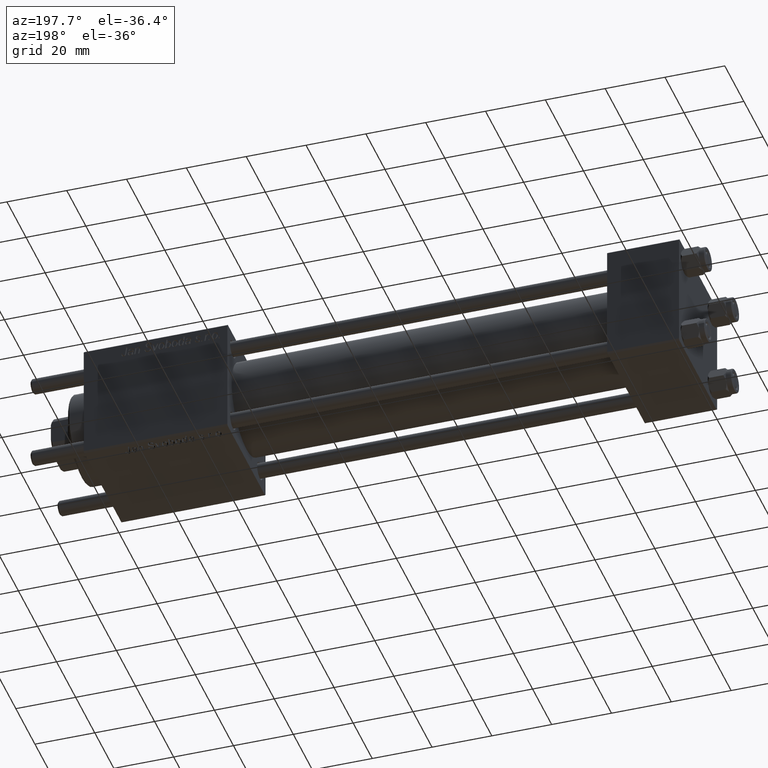
[diagram: clean part render]
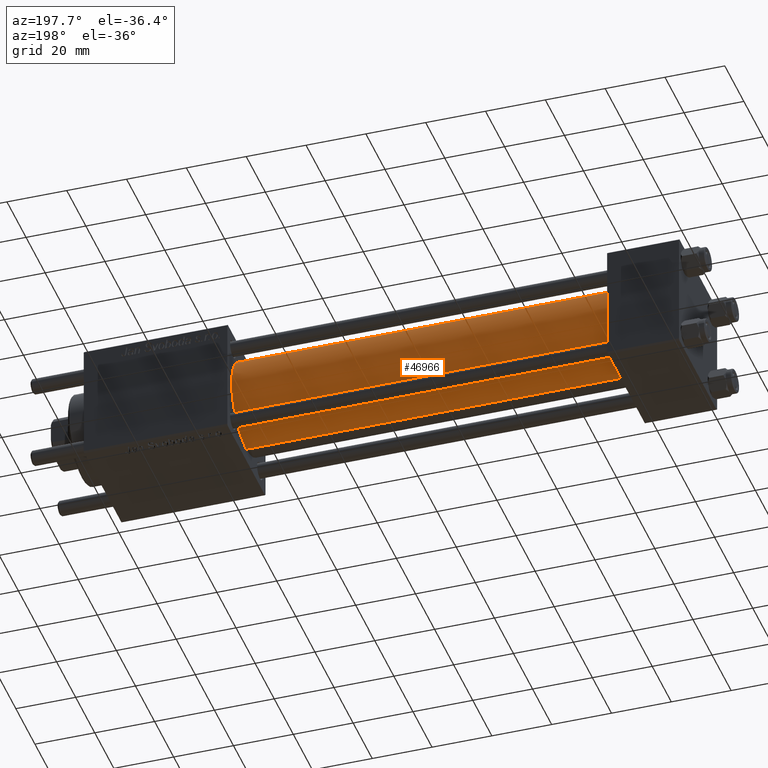
[diagram: same view with one face highlighted and labeled with its STEP entity id]
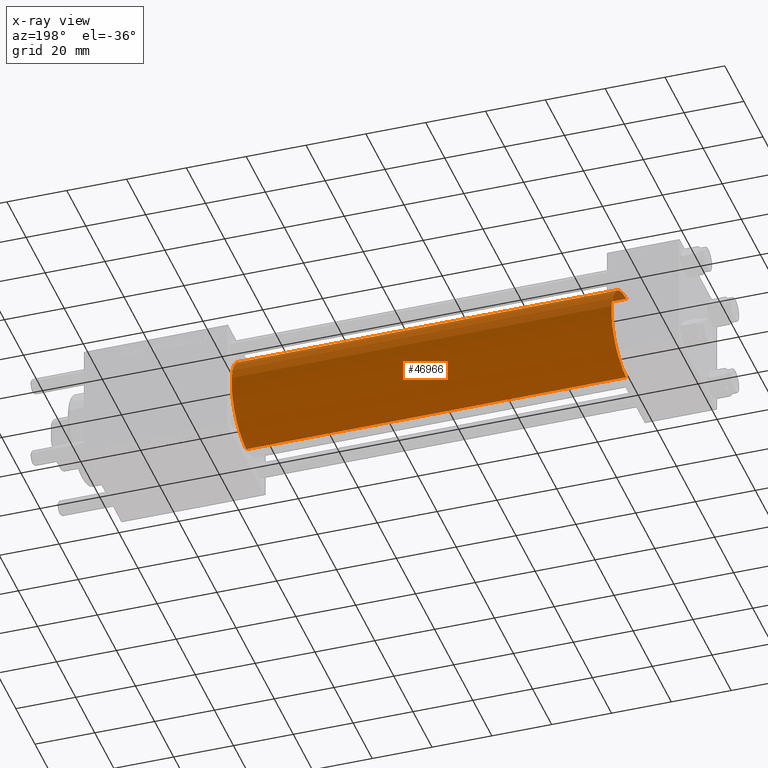
[diagram: x-ray of the same camera — body ghosted, the highlighted face saturated]
A machine part, auxiliary view. The second image highlights one B-rep face of the part: STEP entity #46966.
The next image is the same camera in x-ray: the body ghosted, the highlighted face saturated — about 0% of this face is hidden behind the body in this view.
In plain terms, the highlighted cylindrical surface (partial cylindrical patch) has radius 15.5 mm, axis along (-1, -0, -0).
Its self-contained STEP definition (entity closure, byte-faithful):
#137 = DIRECTION ( 'NONE',  ( -1.000000000000000000, -0.000000000000000000, -0.000000000000000000 ) ) ;
#625 = ORIENTED_EDGE ( 'NONE', *, *, #47037, .F. ) ;
#4417 = CARTESIAN_POINT ( 'NONE',  ( 151.0000000000000000, -2.602085213965210642E-15, 15.50000000000000000 ) ) ;
#5287 = VERTEX_POINT ( 'NONE', #39488 ) ;
#5982 = VECTOR ( 'NONE', #137, 1000.000000000000000 ) ;
#10644 = DIRECTION ( 'NONE',  ( 1.000000000000000000, 0.000000000000000000, 0.000000000000000000 ) ) ;
#11366 = VERTEX_POINT ( 'NONE', #13280 ) ;
#13032 = DIRECTION ( 'NONE',  ( -1.000000000000000000, -0.000000000000000000, -0.000000000000000000 ) ) ;
#13235 = CIRCLE ( 'NONE', #37904, 15.50000000000000000 ) ;
#13280 = CARTESIAN_POINT ( 'NONE',  ( 23.99999999999999289, -7.038826752868131828E-16, -15.50000000000000000 ) ) ;
#14995 = CARTESIAN_POINT ( 'NONE',  ( 151.0000000000000000, -2.602085213965210642E-15, 0.000000000000000000 ) ) ;
#16743 = CYLINDRICAL_SURFACE ( 'NONE', #34257, 15.50000000000000000 ) ;
#18222 = LINE ( 'NONE', #26767, #5982 ) ;
#19426 = ORIENTED_EDGE ( 'NONE', *, *, #36916, .F. ) ;
#19808 = ORIENTED_EDGE ( 'NONE', *, *, #42646, .T. ) ;
#20162 = EDGE_LOOP ( 'NONE', ( #625, #21112, #19808, #19426 ) ) ;
#20458 = DIRECTION ( 'NONE',  ( 0.000000000000000000, 0.000000000000000000, 1.000000000000000000 ) ) ;
#21100 = CARTESIAN_POINT ( 'NONE',  ( 151.0000000000000000, -2.602085213965210642E-15, 15.50000000000000000 ) ) ;
#21112 = ORIENTED_EDGE ( 'NONE', *, *, #49311, .T. ) ;
#26767 = CARTESIAN_POINT ( 'NONE',  ( 151.0000000000000000, -7.038826752868131828E-16, -15.50000000000000000 ) ) ;
#26897 = VERTEX_POINT ( 'NONE', #30308 ) ;
#28751 = DIRECTION ( 'NONE',  ( -1.000000000000000000, -0.000000000000000000, -0.000000000000000000 ) ) ;
#30308 = CARTESIAN_POINT ( 'NONE',  ( 23.99999999999999289, -2.602085213965210642E-15, 15.50000000000000000 ) ) ;
#31577 = DIRECTION ( 'NONE',  ( 1.000000000000000000, 0.000000000000000000, 0.000000000000000000 ) ) ;
#32176 = VERTEX_POINT ( 'NONE', #21100 ) ;
#33625 = CARTESIAN_POINT ( 'NONE',  ( 151.0000000000000000, -2.602085213965210642E-15, 0.000000000000000000 ) ) ;
#34257 = AXIS2_PLACEMENT_3D ( 'NONE', #33625, #28751, #20458 ) ;
#35932 = AXIS2_PLACEMENT_3D ( 'NONE', #49867, #10644, #38367 ) ;
#36916 = EDGE_CURVE ( 'NONE', #32176, #26897, #52255, .T. ) ;
#37904 = AXIS2_PLACEMENT_3D ( 'NONE', #14995, #31577, #49627 ) ;
#38367 = DIRECTION ( 'NONE',  ( 0.000000000000000000, 0.000000000000000000, 1.000000000000000000 ) ) ;
#39488 = CARTESIAN_POINT ( 'NONE',  ( 151.0000000000000000, -7.038826752868131828E-16, -15.50000000000000000 ) ) ;
#42646 = EDGE_CURVE ( 'NONE', #11366, #26897, #56082, .T. ) ;
#46966 = ADVANCED_FACE ( 'NONE', ( #51677 ), #16743, .T. ) ;
#47037 = EDGE_CURVE ( 'NONE', #5287, #32176, #13235, .T. ) ;
#48758 = VECTOR ( 'NONE', #13032, 1000.000000000000000 ) ;
#49311 = EDGE_CURVE ( 'NONE', #5287, #11366, #18222, .T. ) ;
#49627 = DIRECTION ( 'NONE',  ( 0.000000000000000000, 0.000000000000000000, -1.000000000000000000 ) ) ;
#49867 = CARTESIAN_POINT ( 'NONE',  ( 23.99999999999999289, -2.602085213965210642E-15, 0.000000000000000000 ) ) ;
#51677 = FACE_OUTER_BOUND ( 'NONE', #20162, .T. ) ;
#52255 = LINE ( 'NONE', #4417, #48758 ) ;
#56082 = CIRCLE ( 'NONE', #35932, 15.50000000000000000 ) ;